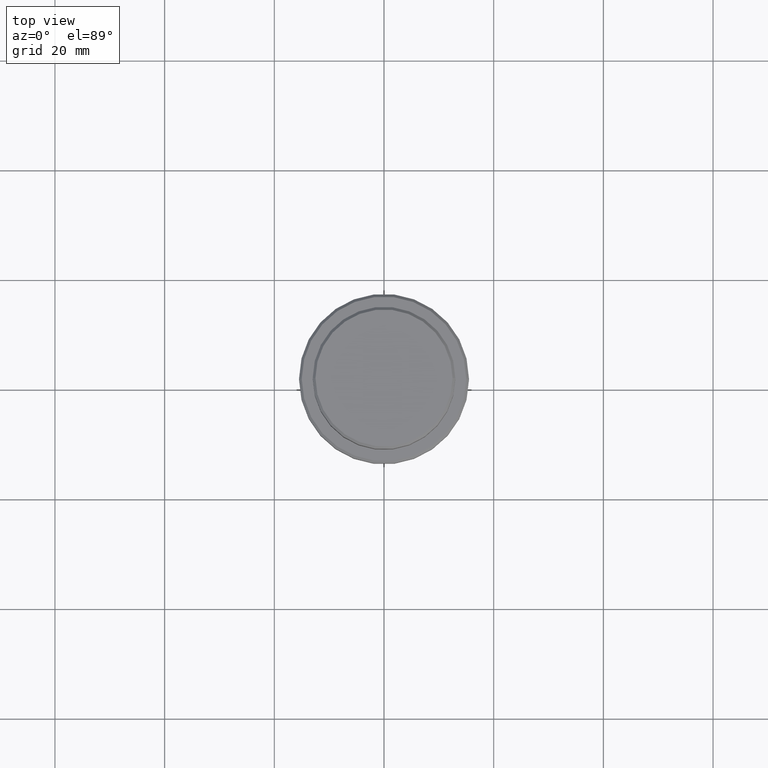
[diagram: clean part render]
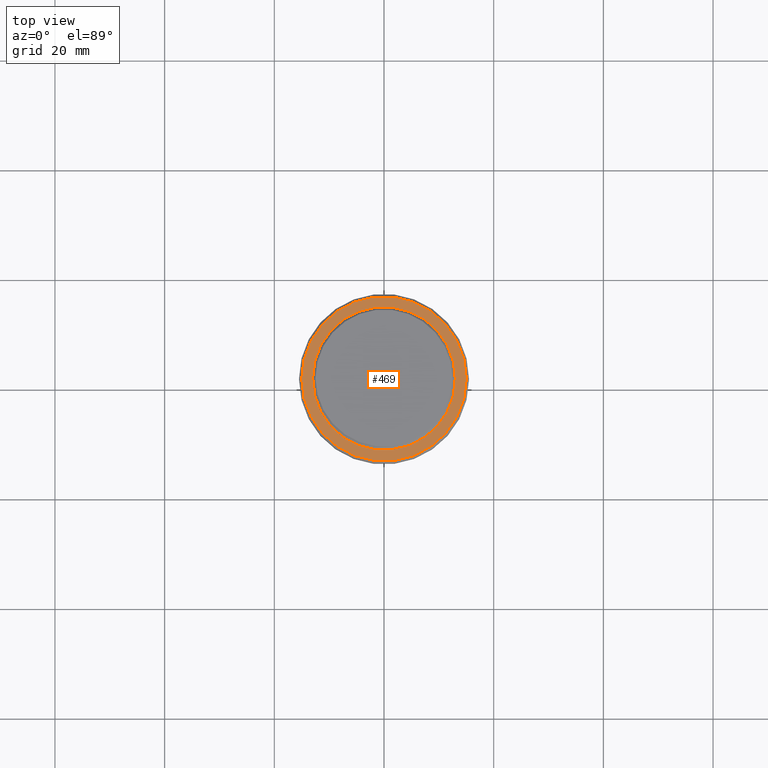
[diagram: same view with one face highlighted and labeled with its STEP entity id]
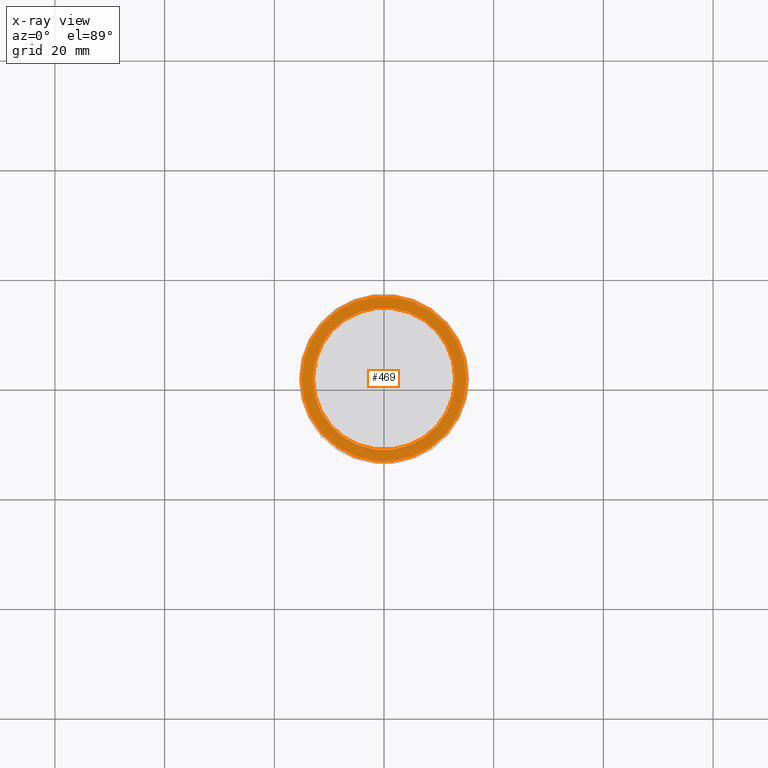
[diagram: x-ray of the same camera — body ghosted, the highlighted face saturated]
A machine part, top view. The second image highlights one B-rep face of the part: STEP entity #469.
The next image is the same camera in x-ray: the body ghosted, the highlighted face saturated — about 0% of this face is hidden behind the body in this view.
In plain terms, the highlighted planar face has unit normal (0, -0, 1).
Its self-contained STEP definition (entity closure, byte-faithful):
#39 = EDGE_LOOP ( 'NONE', ( #548, #186 ) ) ;
#92 = EDGE_CURVE ( 'NONE', #495, #362, #408, .T. ) ;
#165 = DIRECTION ( 'NONE',  ( 1.000000000000000000, 0.000000000000000000, 0.000000000000000000 ) ) ;
#181 = AXIS2_PLACEMENT_3D ( 'NONE', #1368, #1125, #810 ) ;
#186 = ORIENTED_EDGE ( 'NONE', *, *, #808, .T. ) ;
#315 = CARTESIAN_POINT ( 'NONE',  ( 0.000000000000000000, 0.000000000000000000, -9.000000000000001776 ) ) ;
#362 = VERTEX_POINT ( 'NONE', #394 ) ;
#370 = CARTESIAN_POINT ( 'NONE',  ( -12.99999999999999467, 1.592040838891558504E-15, -9.000000000000001776 ) ) ;
#394 = CARTESIAN_POINT ( 'NONE',  ( 15.00000000000002665, 1.867586368699715348E-15, -9.000000000000001776 ) ) ;
#408 = CIRCLE ( 'NONE', #1009, 15.00000000000002665 ) ;
#469 = ADVANCED_FACE ( 'NONE', ( #761, #1176 ), #842, .T. ) ;
#495 = VERTEX_POINT ( 'NONE', #1067 ) ;
#548 = ORIENTED_EDGE ( 'NONE', *, *, #1031, .T. ) ;
#553 = DIRECTION ( 'NONE',  ( -0.000000000000000000, -0.000000000000000000, 1.000000000000000000 ) ) ;
#641 = DIRECTION ( 'NONE',  ( 0.000000000000000000, -0.000000000000000000, 1.000000000000000000 ) ) ;
#652 = DIRECTION ( 'NONE',  ( 1.000000000000000000, 0.000000000000000000, 0.000000000000000000 ) ) ;
#659 = CIRCLE ( 'NONE', #1038, 12.99999999999999467 ) ;
#691 = DIRECTION ( 'NONE',  ( -0.000000000000000000, -0.000000000000000000, 1.000000000000000000 ) ) ;
#761 = FACE_OUTER_BOUND ( 'NONE', #1229, .T. ) ;
#808 = EDGE_CURVE ( 'NONE', #1003, #1007, #1405, .T. ) ;
#810 = DIRECTION ( 'NONE',  ( 1.000000000000000000, 0.000000000000000000, 0.000000000000000000 ) ) ;
#839 = ORIENTED_EDGE ( 'NONE', *, *, #92, .T. ) ;
#842 = PLANE ( 'NONE',  #1010 ) ;
#865 = DIRECTION ( 'NONE',  ( 1.000000000000000000, 0.000000000000000000, 0.000000000000000000 ) ) ;
#868 = ORIENTED_EDGE ( 'NONE', *, *, #1118, .T. ) ;
#960 = CARTESIAN_POINT ( 'NONE',  ( 0.000000000000000000, 12.49999999999999289, -9.000000000000001776 ) ) ;
#973 = CARTESIAN_POINT ( 'NONE',  ( 0.000000000000000000, 0.000000000000000000, -9.000000000000001776 ) ) ;
#1003 = VERTEX_POINT ( 'NONE', #370 ) ;
#1007 = VERTEX_POINT ( 'NONE', #1008 ) ;
#1008 = CARTESIAN_POINT ( 'NONE',  ( 12.99999999999999467, 0.000000000000000000, -9.000000000000001776 ) ) ;
#1009 = AXIS2_PLACEMENT_3D ( 'NONE', #315, #553, #652 ) ;
#1010 = AXIS2_PLACEMENT_3D ( 'NONE', #960, #641, #865 ) ;
#1031 = EDGE_CURVE ( 'NONE', #1007, #1003, #659, .T. ) ;
#1038 = AXIS2_PLACEMENT_3D ( 'NONE', #973, #1114, #165 ) ;
#1067 = CARTESIAN_POINT ( 'NONE',  ( -15.00000000000002665, 0.000000000000000000, -9.000000000000001776 ) ) ;
#1114 = DIRECTION ( 'NONE',  ( 0.000000000000000000, 0.000000000000000000, -1.000000000000000000 ) ) ;
#1118 = EDGE_CURVE ( 'NONE', #362, #495, #1408, .T. ) ;
#1125 = DIRECTION ( 'NONE',  ( 0.000000000000000000, 0.000000000000000000, -1.000000000000000000 ) ) ;
#1176 = FACE_BOUND ( 'NONE', #39, .T. ) ;
#1229 = EDGE_LOOP ( 'NONE', ( #839, #868 ) ) ;
#1242 = DIRECTION ( 'NONE',  ( 1.000000000000000000, 0.000000000000000000, 0.000000000000000000 ) ) ;
#1249 = AXIS2_PLACEMENT_3D ( 'NONE', #1319, #691, #1242 ) ;
#1319 = CARTESIAN_POINT ( 'NONE',  ( 0.000000000000000000, 0.000000000000000000, -9.000000000000001776 ) ) ;
#1368 = CARTESIAN_POINT ( 'NONE',  ( 0.000000000000000000, 0.000000000000000000, -9.000000000000001776 ) ) ;
#1405 = CIRCLE ( 'NONE', #181, 12.99999999999999467 ) ;
#1408 = CIRCLE ( 'NONE', #1249, 15.00000000000002665 ) ;